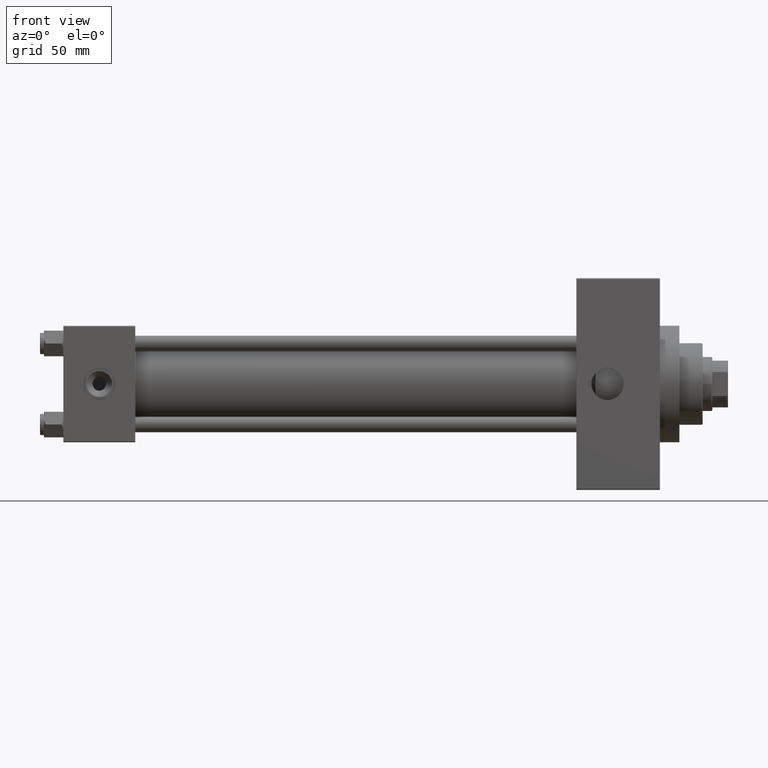
[diagram: clean part render]
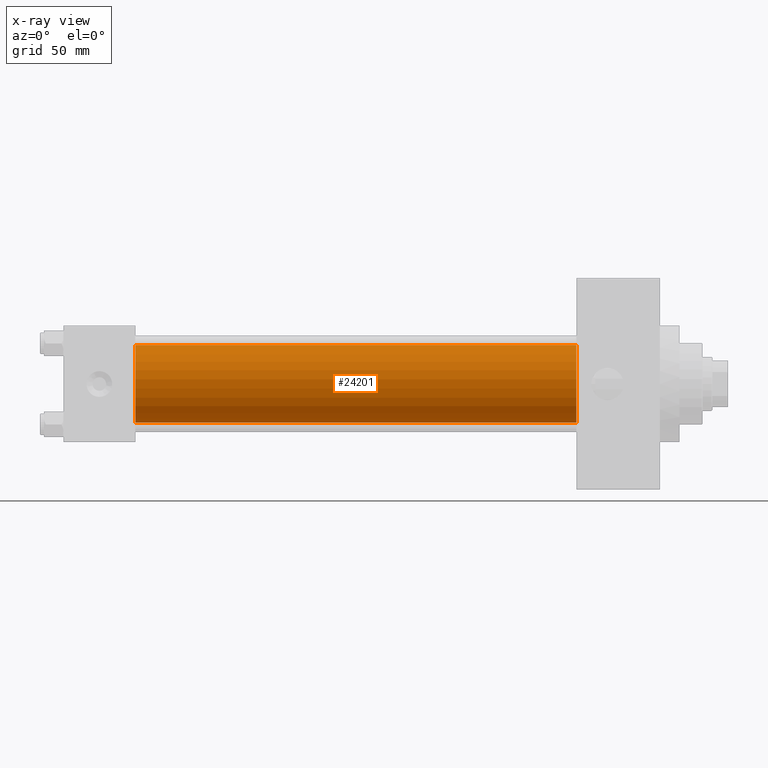
[diagram: x-ray — body ghosted, one internal face saturated and labeled with its STEP entity id]
A machine part, front view, then the same camera in x-ray: the body is ghosted and one INTERNAL B-rep face — a face not visible from any outside direction — is saturated and labeled: STEP entity #24201.
In plain terms, the highlighted cylindrical surface (partial cylindrical patch) has radius 20 mm, axis along (-1, -0, -0).
Its self-contained STEP definition (entity closure, byte-faithful):
#1333 = DIRECTION ( 'NONE',  ( 1.000000000000000000, 0.000000000000000000, 0.000000000000000000 ) ) ;
#1576 = DIRECTION ( 'NONE',  ( 0.000000000000000000, 0.000000000000000000, 1.000000000000000000 ) ) ;
#2315 = CARTESIAN_POINT ( 'NONE',  ( 37.00000000000000000, -2.602085213965210642E-15, 0.000000000000000000 ) ) ;
#6010 = VERTEX_POINT ( 'NONE', #25821 ) ;
#6210 = EDGE_CURVE ( 'NONE', #42001, #31651, #35225, .T. ) ;
#6506 = DIRECTION ( 'NONE',  ( -1.000000000000000000, -0.000000000000000000, -0.000000000000000000 ) ) ;
#6865 = CARTESIAN_POINT ( 'NONE',  ( 264.0000000000000000, -1.527916156705046464E-16, -20.00000000000000000 ) ) ;
#7105 = DIRECTION ( 'NONE',  ( -1.000000000000000000, -0.000000000000000000, -0.000000000000000000 ) ) ;
#10367 = CARTESIAN_POINT ( 'NONE',  ( 264.0000000000000000, -1.527916156705046464E-16, -20.00000000000000000 ) ) ;
#11587 = CYLINDRICAL_SURFACE ( 'NONE', #45394, 20.00000000000000000 ) ;
#12236 = VECTOR ( 'NONE', #7105, 1000.000000000000000 ) ;
#12698 = DIRECTION ( 'NONE',  ( 1.000000000000000000, 0.000000000000000000, 0.000000000000000000 ) ) ;
#13071 = CIRCLE ( 'NONE', #38572, 20.00000000000000000 ) ;
#13921 = EDGE_CURVE ( 'NONE', #6010, #42001, #47437, .T. ) ;
#14060 = EDGE_CURVE ( 'NONE', #6010, #41605, #13071, .T. ) ;
#14343 = LINE ( 'NONE', #6865, #12236 ) ;
#16527 = ORIENTED_EDGE ( 'NONE', *, *, #13921, .F. ) ;
#20193 = DIRECTION ( 'NONE',  ( 0.000000000000000000, 0.000000000000000000, -1.000000000000000000 ) ) ;
#21469 = ORIENTED_EDGE ( 'NONE', *, *, #6210, .F. ) ;
#21478 = CARTESIAN_POINT ( 'NONE',  ( 264.0000000000000000, -2.602085213965210642E-15, 20.00000000000000000 ) ) ;
#24201 = ADVANCED_FACE ( 'NONE', ( #45732 ), #11587, .F. ) ;
#24775 = DIRECTION ( 'NONE',  ( 0.000000000000000000, 0.000000000000000000, -1.000000000000000000 ) ) ;
#25821 = CARTESIAN_POINT ( 'NONE',  ( 264.0000000000000000, -2.602085213965210642E-15, 20.00000000000000000 ) ) ;
#26617 = ORIENTED_EDGE ( 'NONE', *, *, #48108, .T. ) ;
#26773 = ORIENTED_EDGE ( 'NONE', *, *, #14060, .T. ) ;
#28032 = CARTESIAN_POINT ( 'NONE',  ( 37.00000000000000000, -1.527916156705046464E-16, -20.00000000000000000 ) ) ;
#28521 = DIRECTION ( 'NONE',  ( -1.000000000000000000, -0.000000000000000000, -0.000000000000000000 ) ) ;
#30630 = VECTOR ( 'NONE', #6506, 1000.000000000000000 ) ;
#31651 = VERTEX_POINT ( 'NONE', #28032 ) ;
#35225 = CIRCLE ( 'NONE', #47960, 20.00000000000000000 ) ;
#38572 = AXIS2_PLACEMENT_3D ( 'NONE', #39403, #12698, #20193 ) ;
#39403 = CARTESIAN_POINT ( 'NONE',  ( 264.0000000000000000, -2.602085213965210642E-15, 0.000000000000000000 ) ) ;
#39984 = CARTESIAN_POINT ( 'NONE',  ( 264.0000000000000000, -2.602085213965210642E-15, 0.000000000000000000 ) ) ;
#41605 = VERTEX_POINT ( 'NONE', #10367 ) ;
#42001 = VERTEX_POINT ( 'NONE', #49312 ) ;
#44429 = EDGE_LOOP ( 'NONE', ( #26773, #26617, #21469, #16527 ) ) ;
#45394 = AXIS2_PLACEMENT_3D ( 'NONE', #39984, #28521, #1576 ) ;
#45732 = FACE_OUTER_BOUND ( 'NONE', #44429, .T. ) ;
#47437 = LINE ( 'NONE', #21478, #30630 ) ;
#47960 = AXIS2_PLACEMENT_3D ( 'NONE', #2315, #1333, #24775 ) ;
#48108 = EDGE_CURVE ( 'NONE', #41605, #31651, #14343, .T. ) ;
#49312 = CARTESIAN_POINT ( 'NONE',  ( 37.00000000000000000, -2.602085213965210642E-15, 20.00000000000000000 ) ) ;